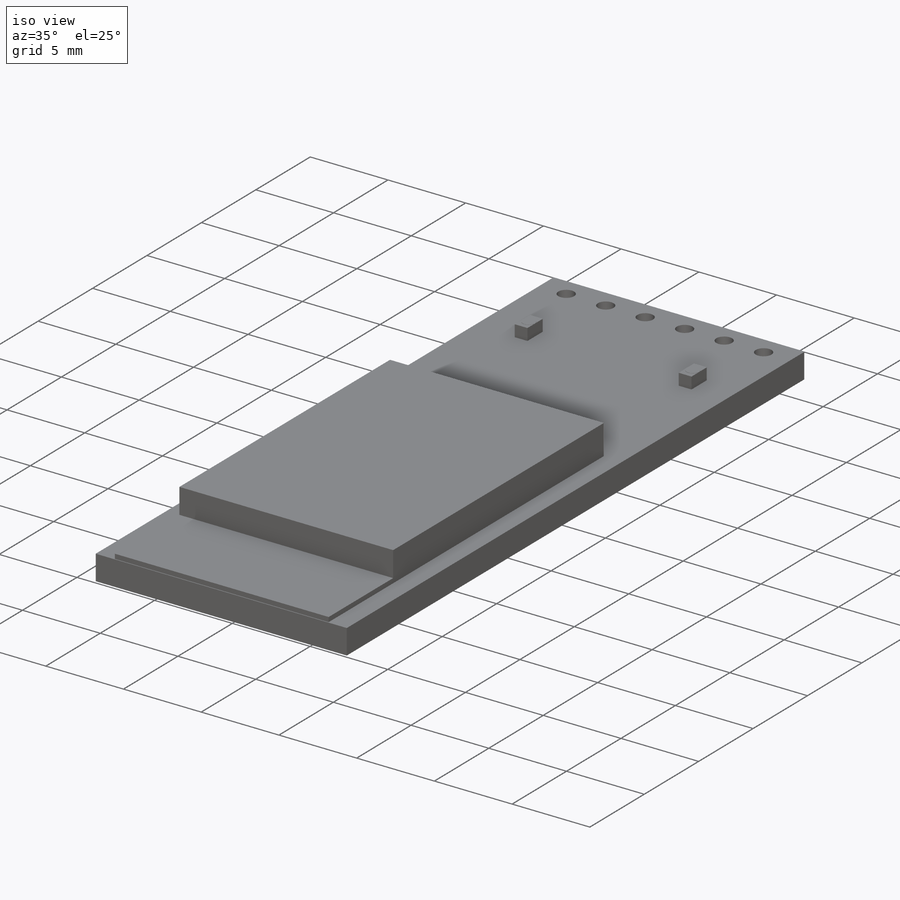
[diagram: iso view]
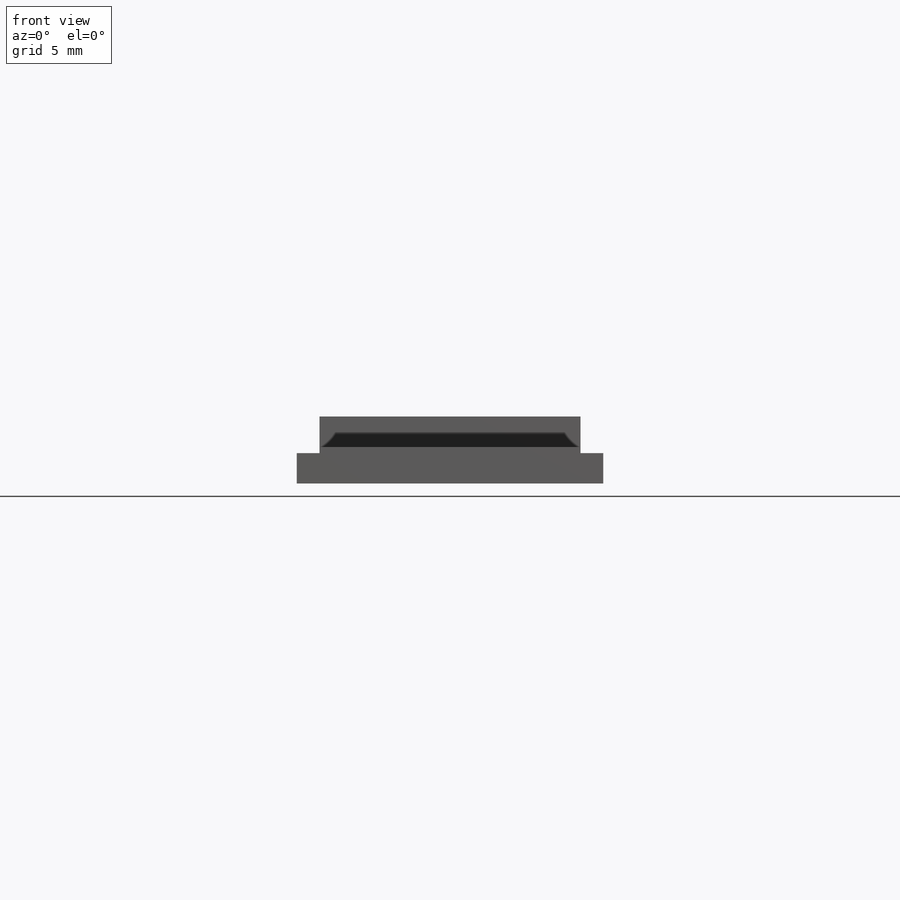
[diagram: front view]
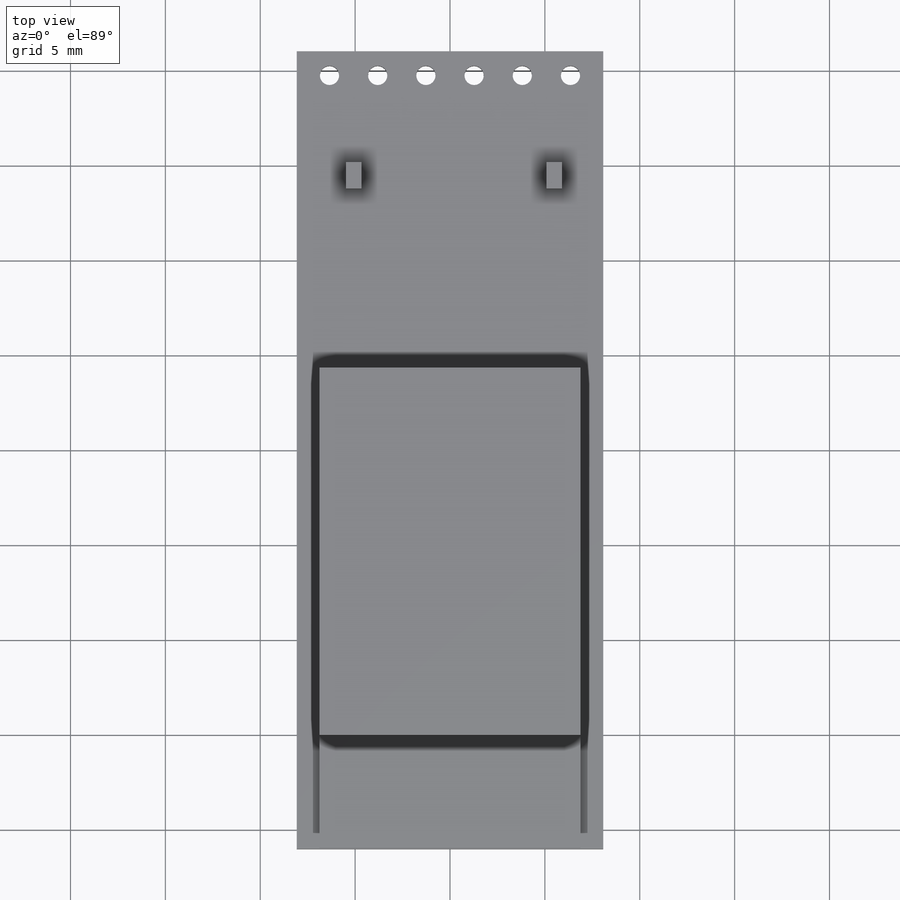
[diagram: top view]
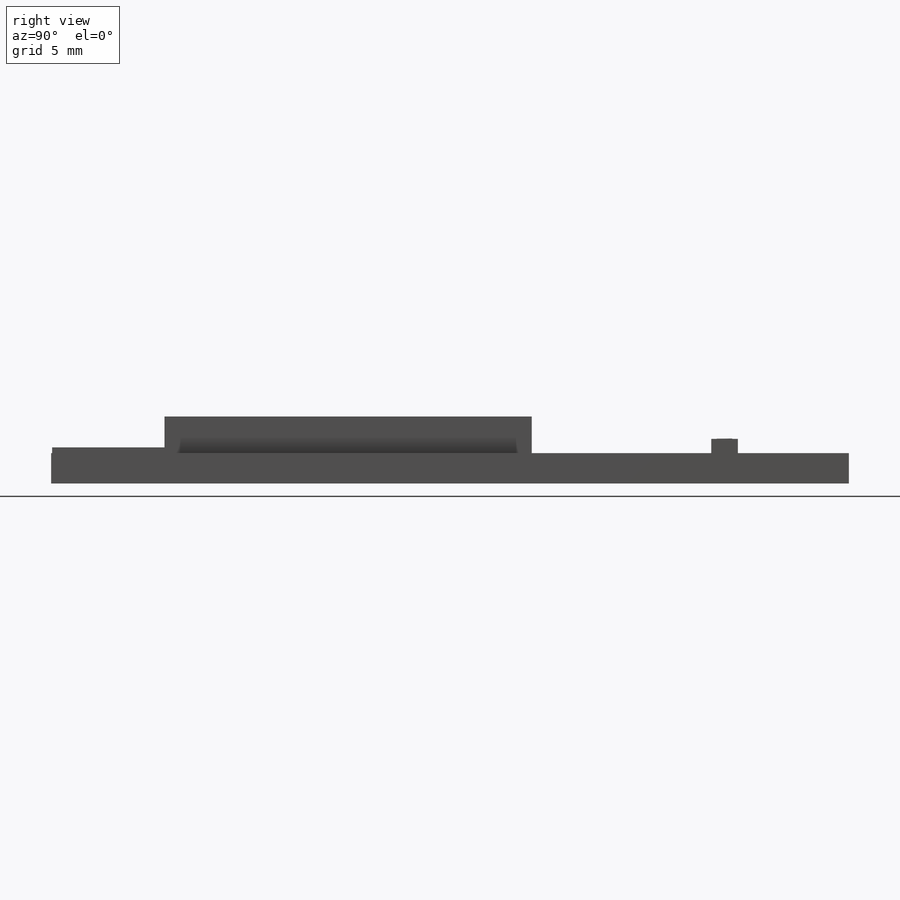
[diagram: right view]
SOLIDWORKS PART (.sldprt)
format: sldprt  version: not decoded by parser v0  size: 315,904 bytes
history: native  units: mm
features: sketch x6, extrude x5, material x1, cut_extrude x1 (+11 scaffold rows collapsed)
feature tree (24):
  scaffold x11  (default folders/planes/origin — collapsed)
  material  "Material <not specified>"
  sketch  "Sketch1"  dims[D1=16.1544mm D2=42.037mm]
  extrude  "Boss-Extrude1"  Depth=1.6002mm
  sketch  "Sketch2"  dims[D7=1.016mm D2=2.54mm D3=2.54mm D4=2.54mm D5=2.54mm D6=2.54mm D8=1.27mm D1=0.0mm]
  cut_extrude  "Cut-Extrude1"  Depth=1.6002mm
  sketch  "Sketch3"  dims[D2=13.75mm D3=25.325mm D4=0.05mm D1=0.0mm]
  extrude  "Boss-Extrude2"  Depth=0.3mm
  sketch  "Sketch4"  dims[D2=19.35mm D1=0.0mm]
  extrude  "Boss-Extrude3"  Depth=1.625mm
  sketch  "Sketch5"  dims[D2=1.4mm D3=0.82mm D4=7.25mm D5=3.0mm D6=2.6mm D1=0.0mm]
  extrude  "Boss-Extrude4"  Depth=0.75mm
  sketch  "Sketch6"  dims[D1=0.0mm D2=0.0mm]
  extrude  "Boss-Extrude5"  Depth=0.01mm
decode coverage: 12 of 12 modeling features carry decoded parameters
note: suppression state not decoded; provenance and decode notes live in map.json
